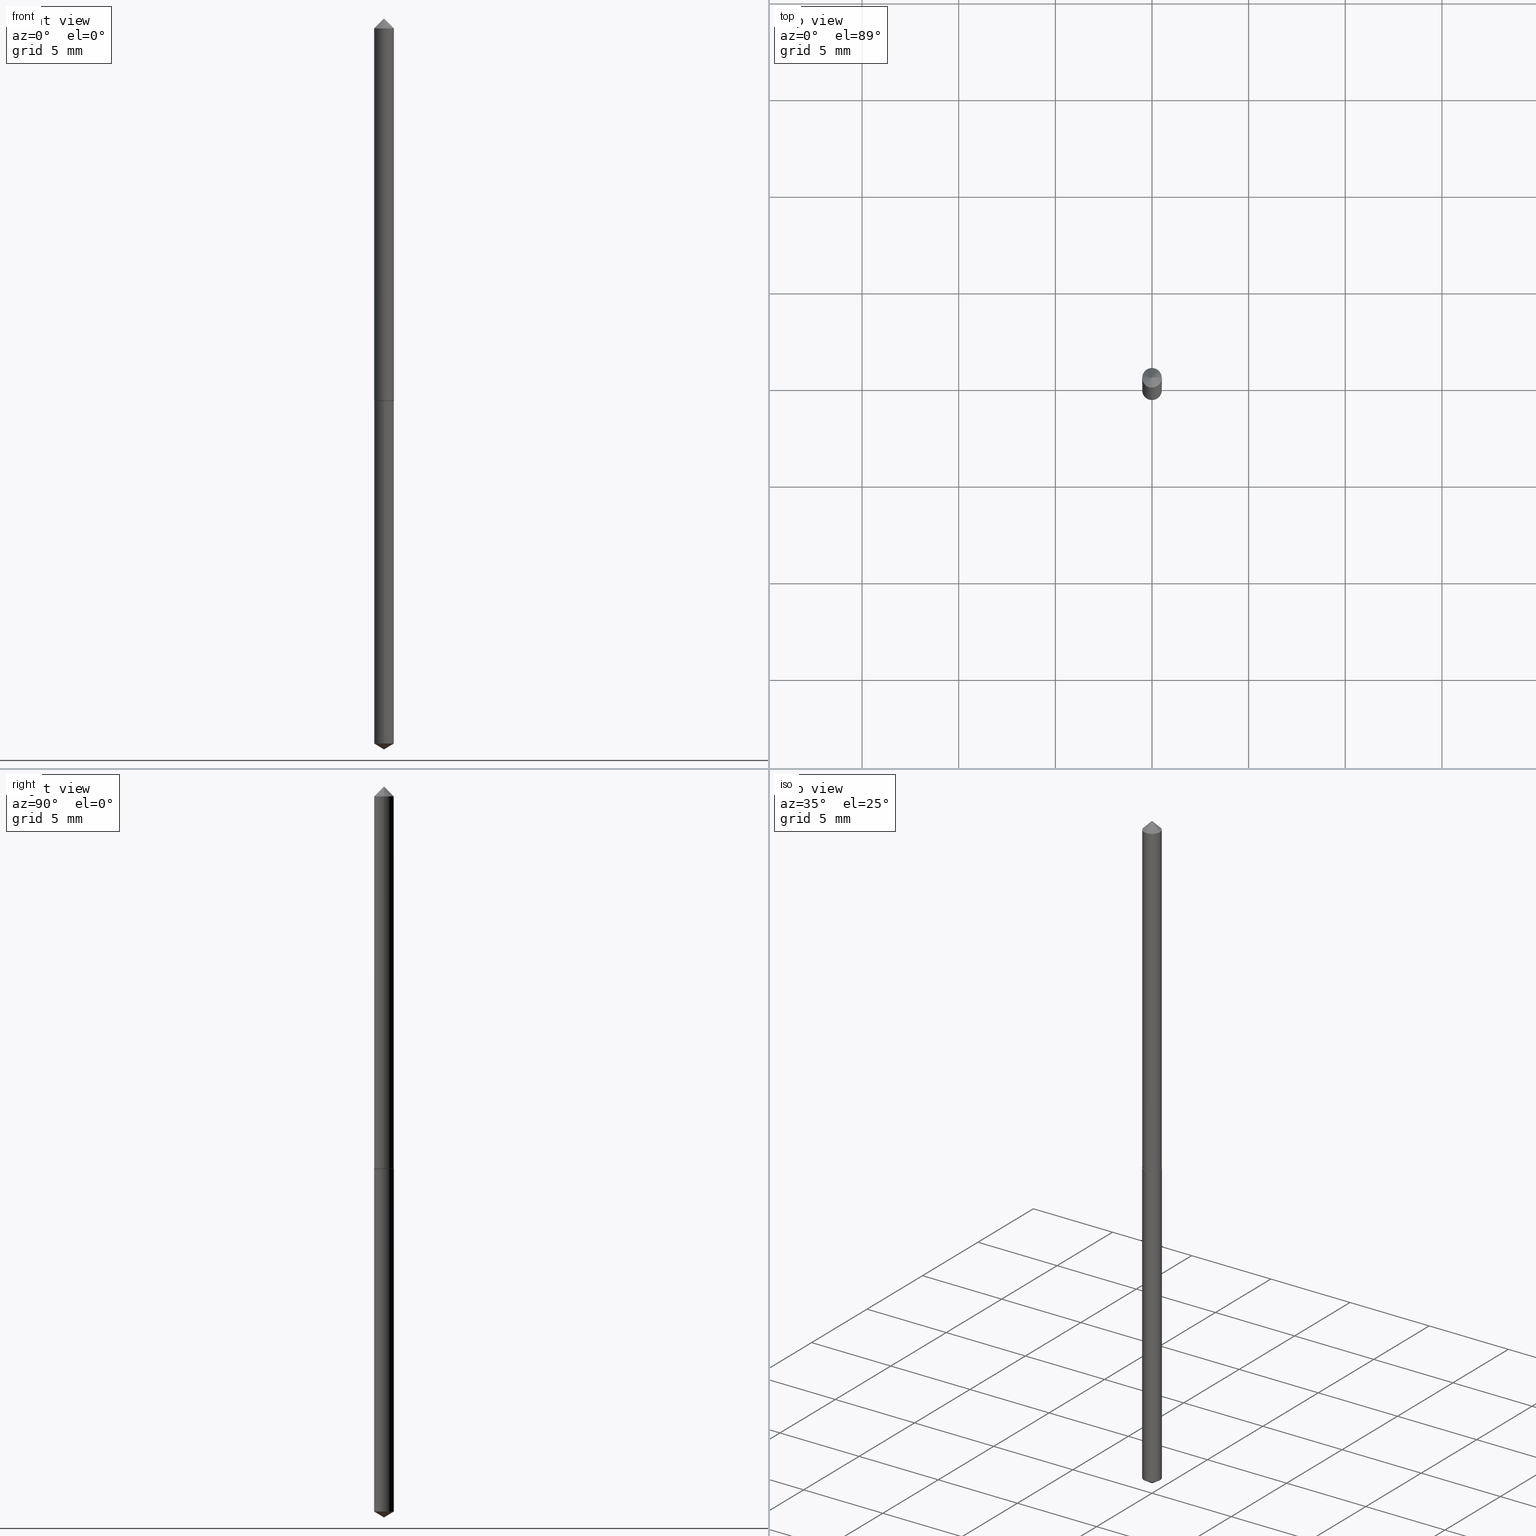
[diagram: canonical four-view strip — front | top / right | iso, engineering-drawing reading convention]
A machine part, canonical four-view strip (front | top / right | iso — engineering-drawing reading convention). The complete STEP part file that produces these views, byte-faithful:
ISO-10303-21;
HEADER;
FILE_DESCRIPTION (( 'STEP AP203' ),
    '1' );
FILE_NAME ('51060.STEP',
    '2024-04-22T18:21:04',
    ( '' ),
    ( '' ),
    'SwSTEP 2.0',
    'SolidWorks 2023',
    '' );
FILE_SCHEMA (( 'CONFIG_CONTROL_DESIGN' ));
ENDSEC;

DATA;
#1 = LINE ( 'NONE', #168, #60 ) ;
#2 = DIRECTION ( 'NONE',  ( 2.445468806185136597E-29, -3.491481338843145583E-15, -1.000000000000000000 ) ) ;
#3 = LOCAL_TIME ( 14, 21, 4.000000000000000000, #111 ) ;
#4 = APPROVAL ( #162, 'UNSPECIFIED' ) ;
#5 = AXIS2_PLACEMENT_3D ( 'NONE', #95, #192, #307 ) ;
#6 = CARTESIAN_POINT ( 'NONE',  ( 0.000000000000000000, 0.000000000000000000, 0.000000000000000000 ) ) ;
#7 = VERTEX_POINT ( 'NONE', #226 ) ;
#8 = ORIENTED_EDGE ( 'NONE', *, *, #183, .T. ) ;
#9 = ADVANCED_FACE ( 'NONE', ( #343 ), #140, .T. ) ;
#10 = VERTEX_POINT ( 'NONE', #193 ) ;
#11 = CONICAL_SURFACE ( 'NONE', #230, 0.02000000000000009409, 0.7853981633975507526 ) ;
#12 = DIRECTION ( 'NONE',  ( -1.000000000000000000, 6.982962677686266711E-15, 0.000000000000000000 ) ) ;
#13 = LINE ( 'NONE', #248, #329 ) ;
#14 = CYLINDRICAL_SURFACE ( 'NONE', #66, 0.02000000000000005246 ) ;
#15 = CARTESIAN_POINT ( 'NONE',  ( -1.396592535536889283E-16, -0.02000000000000519765, -1.487982787619448688 ) ) ;
#16 = APPROVAL_PERSON_ORGANIZATION ( #52, #360, #213 ) ;
#17 = CONICAL_SURFACE ( 'NONE', #223, 0.02000000000000000389, 0.7853981633974450594 ) ;
#18 = DIRECTION ( 'NONE',  ( -2.445468806185136597E-29, 3.491481338843145583E-15, 1.000000000000000000 ) ) ;
#19 = AXIS2_PLACEMENT_3D ( 'NONE', #245, #58, #282 ) ;
#20 = ADVANCED_FACE ( 'NONE', ( #283 ), #17, .T. ) ;
#21 = DIRECTION ( 'NONE',  ( -2.445556676142021675E-29, 3.491355504063638689E-15, 1.000000000000000000 ) ) ;
#22 = APPROVAL_STATUS ( 'not_yet_approved' ) ;
#23 = EDGE_CURVE ( 'NONE', #100, #287, #76, .T. ) ;
#24 = CARTESIAN_POINT ( 'NONE',  ( -0.02000000000000005246, 1.421085471520204099E-16, -9.837870180509835316E-31 ) ) ;
#25 = DATE_AND_TIME ( #326, #321 ) ;
#26 = MANIFOLD_SOLID_BREP ( 'Body-Move/Copy2[1]', #153 ) ;
#27 = SHAPE_DEFINITION_REPRESENTATION ( #217, #87 ) ;
#28 = CONICAL_SURFACE ( 'NONE', #163, 65.52281426576735157, 1.029744258676647206 ) ;
#29 =( NAMED_UNIT ( * ) PLANE_ANGLE_UNIT ( ) SI_UNIT ( $, .RADIAN. ) );
#30 = DIRECTION ( 'NONE',  ( -6.982962677686266711E-15, -1.000000000000000000, 3.468864327941651407E-15 ) ) ;
#31 = AXIS2_PLACEMENT_3D ( 'NONE', #347, #233, #350 ) ;
#32 = CARTESIAN_POINT ( 'NONE',  ( -0.01950000000000009365, -2.617065197038754036E-15, -0.7900000000000000355 ) ) ;
#33 = VERTEX_POINT ( 'NONE', #206 ) ;
#34 = VERTEX_POINT ( 'NONE', #176 ) ;
#35 = APPLICATION_CONTEXT ( 'configuration controlled 3d designs of mechanical parts and assemblies' ) ;
#36 = ORIENTED_EDGE ( 'NONE', *, *, #337, .T. ) ;
#37 = VECTOR ( 'NONE', #131, 39.37007874015748143 ) ;
#38 =( GEOMETRIC_REPRESENTATION_CONTEXT ( 3 ) GLOBAL_UNCERTAINTY_ASSIGNED_CONTEXT ( ( #264 ) ) GLOBAL_UNIT_ASSIGNED_CONTEXT ( ( #57, #29, #198 ) ) REPRESENTATION_CONTEXT ( 'NONE', 'WORKASPACE' ) );
#39 = VERTEX_POINT ( 'NONE', #316 ) ;
#40 = EDGE_LOOP ( 'NONE', ( #59, #86, #36 ) ) ;
#41 = FACE_OUTER_BOUND ( 'NONE', #199, .T. ) ;
#42 = DIRECTION ( 'NONE',  ( -6.982962677686265922E-15, -1.000000000000000000, 6.829619984160658243E-15 ) ) ;
#43 = FACE_OUTER_BOUND ( 'NONE', #345, .T. ) ;
#44 = CARTESIAN_POINT ( 'NONE',  ( 3.668196179681154223E-29, -5.237232075047078949E-15, -1.500000000000000222 ) ) ;
#45 = CARTESIAN_POINT ( 'NONE',  ( 1.931920356886258068E-29, -2.758270257686084896E-15, -0.7900000000000000355 ) ) ;
#46 = PERSON ( 'UNSPECIFIED', 'UNSPECIFIED', 'UNSPECIFIED', ('UNSPECIFIED'), ('UNSPECIFIED'), ('UNSPECIFIED') ) ;
#47 = DIRECTION ( 'NONE',  ( -2.445556676142021675E-29, 3.491355504063638295E-15, 1.000000000000000000 ) ) ;
#48 = DATE_TIME_ROLE ( 'creation_date' ) ;
#49 = APPROVAL_PERSON_ORGANIZATION ( #114, #196, #275 ) ;
#50 = EDGE_CURVE ( 'NONE', #33, #173, #293, .T. ) ;
#51 = DIRECTION ( 'NONE',  ( -2.445556676142021675E-29, 3.491355504063638689E-15, 1.000000000000000000 ) ) ;
#52 = PERSON_AND_ORGANIZATION ( #46, #202 ) ;
#53 = PERSON_AND_ORGANIZATION ( #46, #202 ) ;
#54 = DESIGN_CONTEXT ( 'detailed design', #55, 'design' ) ;
#55 = APPLICATION_CONTEXT ( 'configuration controlled 3d designs of mechanical parts and assemblies' ) ;
#56 = EDGE_CURVE ( 'NONE', #7, #10, #323, .T. ) ;
#57 =( CONVERSION_BASED_UNIT ( 'INCH', #301 ) LENGTH_UNIT ( ) NAMED_UNIT ( #107 ) );
#58 = DIRECTION ( 'NONE',  ( -2.445468806185136597E-29, 3.491481338843145583E-15, 1.000000000000000000 ) ) ;
#59 = ORIENTED_EDGE ( 'NONE', *, *, #232, .F. ) ;
#60 = VECTOR ( 'NONE', #170, 39.37007874015748143 ) ;
#61 = ORIENTED_EDGE ( 'NONE', *, *, #113, .F. ) ;
#62 = DIRECTION ( 'NONE',  ( 2.445556676142021675E-29, -3.491355504063638295E-15, -1.000000000000000000 ) ) ;
#63 = ORIENTED_EDGE ( 'NONE', *, *, #81, .F. ) ;
#64 = VERTEX_POINT ( 'NONE', #132 ) ;
#65 = PRODUCT_DEFINITION_FORMATION_WITH_SPECIFIED_SOURCE ( 'ANY', '', #276, .NOT_KNOWN. ) ;
#66 = AXIS2_PLACEMENT_3D ( 'NONE', #179, #105, #289 ) ;
#67 = ORIENTED_EDGE ( 'NONE', *, *, #232, .T. ) ;
#68 = DIRECTION ( 'NONE',  ( -0.7071067811865452413, 2.468850131082233000E-15, -0.7071067811865497932 ) ) ;
#69 = EDGE_CURVE ( 'NONE', #288, #39, #274, .T. ) ;
#70 = CARTESIAN_POINT ( 'NONE',  ( -1.396592535537060120E-16, -0.02000000000000275863, -0.7900000000000000355 ) ) ;
#71 = CC_DESIGN_APPROVAL ( #360, ( #65 ) ) ;
#72 = VECTOR ( 'NONE', #47, 39.37007874015748143 ) ;
#73 = CIRCLE ( 'NONE', #273, 0.02000000000000000389 ) ;
#74 = CC_DESIGN_PERSON_AND_ORGANIZATION_ASSIGNMENT ( #294, #239, ( #236 ) ) ;
#75 = AXIS2_PLACEMENT_3D ( 'NONE', #280, #363, #277 ) ;
#76 = LINE ( 'NONE', #70, #72 ) ;
#77 = DIRECTION ( 'NONE',  ( -2.445468806185136597E-29, 3.491481338843145583E-15, 1.000000000000000000 ) ) ;
#78 = PERSON_AND_ORGANIZATION_ROLE ( 'creator' ) ;
#79 = DIRECTION ( 'NONE',  ( 1.000000000000000000, -6.982962677686273810E-15, 0.000000000000000000 ) ) ;
#80 = DATE_AND_TIME ( #106, #3 ) ;
#81 = EDGE_CURVE ( 'NONE', #34, #100, #352, .T. ) ;
#82 = DIRECTION ( 'NONE',  ( -2.445468806185136877E-29, 3.491481338843145188E-15, 1.000000000000000000 ) ) ;
#83 = CALENDAR_DATE ( 2024, 22, 4 ) ;
#84 = APPROVAL_DATE_TIME ( #353, #360 ) ;
#85 = PERSON_AND_ORGANIZATION ( #46, #202 ) ;
#86 = ORIENTED_EDGE ( 'NONE', *, *, #56, .T. ) ;
#87 = ADVANCED_BREP_SHAPE_REPRESENTATION ( '51060', ( #26, #257, #313 ), #38 ) ;
#88 = DIRECTION ( 'NONE',  ( 0.7071067811865452413, -7.319954787623248157E-15, -0.7071067811865497932 ) ) ;
#89 = VECTOR ( 'NONE', #181, 39.37007874015748143 ) ;
#90 = DIRECTION ( 'NONE',  ( -2.445468806185136597E-29, 3.491481338843145583E-15, 1.000000000000000000 ) ) ;
#91 = EDGE_CURVE ( 'NONE', #173, #287, #286, .T. ) ;
#92 = DIRECTION ( 'NONE',  ( -2.445556676142021675E-29, 3.491355504063638689E-15, 1.000000000000000000 ) ) ;
#93 = ORIENTED_EDGE ( 'NONE', *, *, #220, .F. ) ;
#94 = ADVANCED_FACE ( 'NONE', ( #104 ), #265, .T. ) ;
#95 = CARTESIAN_POINT ( 'NONE',  ( 1.930697622483165547E-29, -2.756524517016664181E-15, -0.7895000000000000906 ) ) ;
#96 = DIRECTION ( 'NONE',  ( -1.000000000000000000, 6.982962677686266711E-15, 0.000000000000000000 ) ) ;
#97 = AXIS2_PLACEMENT_3D ( 'NONE', #133, #135, #234 ) ;
#98 = ORIENTED_EDGE ( 'NONE', *, *, #315, .T. ) ;
#99 = ORIENTED_EDGE ( 'NONE', *, *, #113, .T. ) ;
#100 = VERTEX_POINT ( 'NONE', #15 ) ;
#101 = AXIS2_PLACEMENT_3D ( 'NONE', #45, #77, #79 ) ;
#102 = VERTEX_POINT ( 'NONE', #263 ) ;
#103 = CARTESIAN_POINT ( 'NONE',  ( 3.668336231627996488E-29, -5.237033256095458034E-15, -1.500000000000000222 ) ) ;
#104 = FACE_OUTER_BOUND ( 'NONE', #247, .T. ) ;
#105 = DIRECTION ( 'NONE',  ( -2.445468806185136597E-29, 3.491481338843145583E-15, 1.000000000000000000 ) ) ;
#106 = CALENDAR_DATE ( 2024, 22, 4 ) ;
#107 = DIMENSIONAL_EXPONENTS ( 1.000000000000000000, 0.000000000000000000, 0.000000000000000000, 0.000000000000000000, 0.000000000000000000, 0.000000000000000000, 0.000000000000000000 ) ;
#108 = LINE ( 'NONE', #208, #355 ) ;
#109 = COORDINATED_UNIVERSAL_TIME_OFFSET ( 5, 0, .BEHIND. ) ;
#110 = CARTESIAN_POINT ( 'NONE',  ( 3.638876822981220103E-29, -5.195176304982929067E-15, -1.487982787619448688 ) ) ;
#111 = COORDINATED_UNIVERSAL_TIME_OFFSET ( 5, 0, .BEHIND. ) ;
#112 = CIRCLE ( 'NONE', #333, 0.02000000000000000042 ) ;
#113 = EDGE_CURVE ( 'NONE', #39, #288, #308, .T. ) ;
#114 = PERSON_AND_ORGANIZATION ( #46, #202 ) ;
#115 = CARTESIAN_POINT ( 'NONE',  ( 1.931920356886258349E-29, -2.758270257686085290E-15, -0.7900000000000001465 ) ) ;
#116 = DIRECTION ( 'NONE',  ( 0.7071067811866199593, -2.468850131083015945E-15, 0.7071067811864750752 ) ) ;
#117 = LOCAL_TIME ( 14, 21, 4.000000000000000000, #207 ) ;
#118 = CONICAL_SURFACE ( 'NONE', #339, 65.52281426576735157, 1.029744258676647206 ) ;
#119 = LINE ( 'NONE', #359, #361 ) ;
#120 = FACE_OUTER_BOUND ( 'NONE', #311, .T. ) ;
#121 = ORIENTED_EDGE ( 'NONE', *, *, #124, .T. ) ;
#122 = DIRECTION ( 'NONE',  ( -6.982962677686266711E-15, -1.000000000000000000, 3.468864327941651407E-15 ) ) ;
#123 = AXIS2_PLACEMENT_3D ( 'NONE', #115, #62, #244 ) ;
#124 = EDGE_CURVE ( 'NONE', #287, #173, #212, .T. ) ;
#125 = DIRECTION ( 'NONE',  ( 0.000000000000000000, 0.000000000000000000, 1.000000000000000000 ) ) ;
#126 = ORIENTED_EDGE ( 'NONE', *, *, #157, .T. ) ;
#127 = ORIENTED_EDGE ( 'NONE', *, *, #56, .F. ) ;
#128 = ADVANCED_FACE ( 'NONE', ( #262 ), #11, .T. ) ;
#129 = ORIENTED_EDGE ( 'NONE', *, *, #50, .F. ) ;
#130 = CC_DESIGN_PERSON_AND_ORGANIZATION_ASSIGNMENT ( #85, #330, ( #276 ) ) ;
#131 = DIRECTION ( 'NONE',  ( -2.445556676142021675E-29, 3.491355504063638295E-15, 1.000000000000000000 ) ) ;
#132 = CARTESIAN_POINT ( 'NONE',  ( -0.02000000000000009409, -2.614415969864643229E-15, -0.7895000000000000906 ) ) ;
#133 = CARTESIAN_POINT ( 'NONE',  ( 1.930697622483165547E-29, -2.756524517016664181E-15, -0.7895000000000000906 ) ) ;
#134 = AXIS2_PLACEMENT_3D ( 'NONE', #267, #21, #136 ) ;
#135 = DIRECTION ( 'NONE',  ( -2.445468806185136597E-29, 3.491481338843145583E-15, 1.000000000000000000 ) ) ;
#136 = DIRECTION ( 'NONE',  ( -6.982962677686265922E-15, -1.000000000000000000, 6.829619984160658243E-15 ) ) ;
#137 = APPROVAL_STATUS ( 'not_yet_approved' ) ;
#138 = DIRECTION ( 'NONE',  ( -2.445556676142021675E-29, 3.491355504063638689E-15, 1.000000000000000000 ) ) ;
#139 = PERSON_AND_ORGANIZATION_ROLE ( 'creator' ) ;
#140 = CONICAL_SURFACE ( 'NONE', #338, 0.02000000000000000389, 0.7853981633974450594 ) ;
#141 = ORIENTED_EDGE ( 'NONE', *, *, #23, .F. ) ;
#142 = ORIENTED_EDGE ( 'NONE', *, *, #299, .F. ) ;
#143 = AXIS2_PLACEMENT_3D ( 'NONE', #231, #204, #292 ) ;
#144 = CARTESIAN_POINT ( 'NONE',  ( 7.642090019328601786E-31, -1.091087918388490144E-16, -0.03125000000000020123 ) ) ;
#145 = ORIENTED_EDGE ( 'NONE', *, *, #220, .T. ) ;
#146 = EDGE_LOOP ( 'NONE', ( #63, #8, #362 ) ) ;
#147 = AXIS2_PLACEMENT_3D ( 'NONE', #110, #138, #327 ) ;
#148 = EDGE_LOOP ( 'NONE', ( #127, #67, #166 ) ) ;
#149 = VERTEX_POINT ( 'NONE', #156 ) ;
#150 = ADVANCED_FACE ( 'NONE', ( #43 ), #187, .T. ) ;
#151 = CC_DESIGN_PERSON_AND_ORGANIZATION_ASSIGNMENT ( #268, #139, ( #65 ) ) ;
#152 = CARTESIAN_POINT ( 'NONE',  ( -0.02000000000000000389, 3.055046171487634327E-17, -0.03125000000000020123 ) ) ;
#153 = CLOSED_SHELL ( 'NONE', ( #216, #278, #270, #167, #348 ) ) ;
#154 = AXIS2_PLACEMENT_3D ( 'NONE', #158, #325, #42 ) ;
#155 = DIRECTION ( 'NONE',  ( 1.000000000000000000, -6.982962677686273810E-15, 0.000000000000000000 ) ) ;
#156 = CARTESIAN_POINT ( 'NONE',  ( 0.02000000000000000389, -2.487680453925743658E-16, -0.03125000000000020123 ) ) ;
#157 = EDGE_CURVE ( 'NONE', #288, #64, #108, .T. ) ;
#158 = CARTESIAN_POINT ( 'NONE',  ( 1.931920356886258349E-29, -2.758270257686085290E-15, -0.7900000000000001465 ) ) ;
#159 = CARTESIAN_POINT ( 'NONE',  ( 1.421085471520393179E-16, 0.01999999999999724221, -0.7900000000000003686 ) ) ;
#160 = CALENDAR_DATE ( 2024, 22, 4 ) ;
#161 = CARTESIAN_POINT ( 'NONE',  ( 1.931920356886258349E-29, -2.758270257686085290E-15, -0.7900000000000001465 ) ) ;
#162 = APPROVAL_STATUS ( 'not_yet_approved' ) ;
#163 = AXIS2_PLACEMENT_3D ( 'NONE', #334, #335, #122 ) ;
#164 = ADVANCED_FACE ( 'NONE', ( #203 ), #14, .T. ) ;
#165 = FACE_OUTER_BOUND ( 'NONE', #344, .T. ) ;
#166 = ORIENTED_EDGE ( 'NONE', *, *, #299, .T. ) ;
#167 = ADVANCED_FACE ( 'NONE', ( #296 ), #259, .T. ) ;
#168 = CARTESIAN_POINT ( 'NONE',  ( 0.02000000000000005246, -1.396592535537256843E-16, 9.752353551591896459E-31 ) ) ;
#169 = EDGE_LOOP ( 'NONE', ( #93, #197, #201, #357 ) ) ;
#170 = DIRECTION ( 'NONE',  ( -2.445468806185136877E-29, 3.491481338843145188E-15, 1.000000000000000000 ) ) ;
#171 = EDGE_LOOP ( 'NONE', ( #129, #340, #258, #243 ) ) ;
#172 = ORIENTED_EDGE ( 'NONE', *, *, #318, .F. ) ;
#173 = VERTEX_POINT ( 'NONE', #238 ) ;
#174 = DIRECTION ( 'NONE',  ( 1.000000000000000000, -6.982962677686276177E-15, 0.000000000000000000 ) ) ;
#175 = DIRECTION ( 'NONE',  ( -2.445468806185136597E-29, 3.491481338843145583E-15, 1.000000000000000000 ) ) ;
#176 = CARTESIAN_POINT ( 'NONE',  ( 3.668335014213032512E-29, -5.237033256095458034E-15, -1.500000000000000222 ) ) ;
#177 = DIRECTION ( 'NONE',  ( -5.985567269335916825E-15, -0.8571673007021067825, 0.5150380749100633704 ) ) ;
#178 = SECURITY_CLASSIFICATION_LEVEL ( 'unclassified' ) ;
#179 = CARTESIAN_POINT ( 'NONE',  ( 0.000000000000000000, 0.000000000000000000, 0.000000000000000000 ) ) ;
#180 = AXIS2_PLACEMENT_3D ( 'NONE', #290, #175, #155 ) ;
#181 = DIRECTION ( 'NONE',  ( 6.090539988449753981E-15, 0.8571673007021103352, 0.5150380749100573752 ) ) ;
#182 = COORDINATED_UNIVERSAL_TIME_OFFSET ( 5, 0, .BEHIND. ) ;
#183 = EDGE_CURVE ( 'NONE', #34, #33, #346, .T. ) ;
#184 = DATE_TIME_ROLE ( 'classification_date' ) ;
#185 = DATE_AND_TIME ( #271, #279 ) ;
#186 = CC_DESIGN_SECURITY_CLASSIFICATION ( #236, ( #65 ) ) ;
#187 = CONICAL_SURFACE ( 'NONE', #97, 0.02000000000000009409, 0.7853981633975507526 ) ;
#188 = CC_DESIGN_DATE_AND_TIME_ASSIGNMENT ( #80, #48, ( #342 ) ) ;
#189 = CARTESIAN_POINT ( 'NONE',  ( -1.396592535537060120E-16, -0.02000000000000275863, -0.7900000000000000355 ) ) ;
#190 = FACE_OUTER_BOUND ( 'NONE', #146, .T. ) ;
#191 = EDGE_CURVE ( 'NONE', #33, #100, #300, .T. ) ;
#192 = DIRECTION ( 'NONE',  ( -2.445468806185136597E-29, 3.491481338843145583E-15, 1.000000000000000000 ) ) ;
#193 = CARTESIAN_POINT ( 'NONE',  ( -0.02000000000000000389, -1.290708107275735097E-15, -0.03125000000000020123 ) ) ;
#194 = AXIS2_PLACEMENT_3D ( 'NONE', #161, #51, #269 ) ;
#195 = DIRECTION ( 'NONE',  ( -6.982962677686265922E-15, -1.000000000000000000, 0.000000000000000000 ) ) ;
#196 = APPROVAL ( #137, 'UNSPECIFIED' ) ;
#197 = ORIENTED_EDGE ( 'NONE', *, *, #364, .T. ) ;
#198 =( NAMED_UNIT ( * ) SI_UNIT ( $, .STERADIAN. ) SOLID_ANGLE_UNIT ( ) );
#199 = EDGE_LOOP ( 'NONE', ( #61, #229 ) ) ;
#200 = CC_DESIGN_APPROVAL ( #196, ( #342 ) ) ;
#201 = ORIENTED_EDGE ( 'NONE', *, *, #237, .T. ) ;
#202 = ORGANIZATION ( 'UNSPECIFIED', 'UNSPECIFIED', '' ) ;
#203 = FACE_OUTER_BOUND ( 'NONE', #169, .T. ) ;
#204 = DIRECTION ( 'NONE',  ( -2.445468806185136597E-29, 3.491481338843145583E-15, 1.000000000000000000 ) ) ;
#205 = CARTESIAN_POINT ( 'NONE',  ( 1.930697622483165547E-29, -2.756524517016664181E-15, -0.7895000000000000906 ) ) ;
#206 = CARTESIAN_POINT ( 'NONE',  ( 1.421085471520564263E-16, 0.01999999999999480665, -1.487982787619448688 ) ) ;
#207 = COORDINATED_UNIVERSAL_TIME_OFFSET ( 5, 0, .BEHIND. ) ;
#208 = CARTESIAN_POINT ( 'NONE',  ( -0.02000000000000009409, -2.614415969864643229E-15, -0.7895000000000000906 ) ) ;
#209 = APPLICATION_PROTOCOL_DEFINITION ( 'international standard', 'config_control_design', 1994, #55 ) ;
#210 = LINE ( 'NONE', #24, #291 ) ;
#211 = PERSON_AND_ORGANIZATION_ROLE ( 'design_supplier' ) ;
#212 = CIRCLE ( 'NONE', #31, 0.02000000000000000042 ) ;
#213 = APPROVAL_ROLE ( '' ) ;
#214 = APPROVAL_DATE_TIME ( #25, #196 ) ;
#215 = ORIENTED_EDGE ( 'NONE', *, *, #315, .F. ) ;
#216 = ADVANCED_FACE ( 'NONE', ( #297 ), #240, .T. ) ;
#217 = PRODUCT_DEFINITION_SHAPE ( 'NONE', 'NONE',  #342 ) ;
#218 = CARTESIAN_POINT ( 'NONE',  ( 7.642090019328601786E-31, -1.091087918388490144E-16, -0.03125000000000020123 ) ) ;
#219 = DIRECTION ( 'NONE',  ( 1.000000000000000000, -6.982962677686266711E-15, 0.000000000000000000 ) ) ;
#220 = EDGE_CURVE ( 'NONE', #64, #10, #210, .T. ) ;
#221 = EDGE_LOOP ( 'NONE', ( #99, #126, #215, #172 ) ) ;
#222 = CARTESIAN_POINT ( 'NONE',  ( -9.261349330628211132E-28, 1.322178084392963997E-13, 37.87007874015748143 ) ) ;
#223 = AXIS2_PLACEMENT_3D ( 'NONE', #250, #2, #12 ) ;
#224 = ORIENTED_EDGE ( 'NONE', *, *, #237, .F. ) ;
#225 = CIRCLE ( 'NONE', #75, 0.02000000000000000389 ) ;
#226 = CARTESIAN_POINT ( 'NONE',  ( 2.751152406958296661E-31, -3.927916506198563605E-17, -0.01125000000000007244 ) ) ;
#227 = ADVANCED_FACE ( 'NONE', ( #41 ), #256, .F. ) ;
#228 = ORIENTED_EDGE ( 'NONE', *, *, #364, .F. ) ;
#229 = ORIENTED_EDGE ( 'NONE', *, *, #69, .F. ) ;
#230 = AXIS2_PLACEMENT_3D ( 'NONE', #205, #18, #174 ) ;
#231 = CARTESIAN_POINT ( 'NONE',  ( 0.000000000000000000, 0.000000000000000000, 0.000000000000000000 ) ) ;
#232 = EDGE_CURVE ( 'NONE', #7, #149, #13, .T. ) ;
#233 = DIRECTION ( 'NONE',  ( -2.445556676142021675E-29, 3.491355504063638689E-15, 1.000000000000000000 ) ) ;
#234 = DIRECTION ( 'NONE',  ( 1.000000000000000000, -6.982962677686276177E-15, 0.000000000000000000 ) ) ;
#235 = DIRECTION ( 'NONE',  ( -2.438088387897960049E-29, 3.491481338843145188E-15, 1.000000000000000000 ) ) ;
#236 = SECURITY_CLASSIFICATION ( '', '', #178 ) ;
#237 = EDGE_CURVE ( 'NONE', #102, #149, #1, .T. ) ;
#238 = CARTESIAN_POINT ( 'NONE',  ( 1.421085471520565496E-16, 0.01999999999999724221, -0.7900000000000003686 ) ) ;
#239 = PERSON_AND_ORGANIZATION_ROLE ( 'classification_officer' ) ;
#240 = CYLINDRICAL_SURFACE ( 'NONE', #194, 0.02000000000000000042 ) ;
#241 = PERSON_AND_ORGANIZATION ( #46, #202 ) ;
#242 = VECTOR ( 'NONE', #177, 39.37007874015748143 ) ;
#243 = ORIENTED_EDGE ( 'NONE', *, *, #91, .F. ) ;
#244 = DIRECTION ( 'NONE',  ( 6.982962677686265922E-15, 1.000000000000000000, -3.491355504063638295E-15 ) ) ;
#245 = CARTESIAN_POINT ( 'NONE',  ( 1.930697622483165547E-29, -2.756524517016664181E-15, -0.7895000000000000906 ) ) ;
#246 = CC_DESIGN_APPROVAL ( #4, ( #236 ) ) ;
#247 = EDGE_LOOP ( 'NONE', ( #98, #145, #142, #224 ) ) ;
#248 = CARTESIAN_POINT ( 'NONE',  ( 0.02000000000000000389, -2.463187517942796648E-16, -0.03125000000000020123 ) ) ;
#249 = ORIENTED_EDGE ( 'NONE', *, *, #183, .F. ) ;
#250 = CARTESIAN_POINT ( 'NONE',  ( 7.642090019328601786E-31, -1.091087918388490144E-16, -0.03125000000000020123 ) ) ;
#251 = APPROVAL_PERSON_ORGANIZATION ( #53, #4, #351 ) ;
#252 = CIRCLE ( 'NONE', #19, 0.02000000000000009409 ) ;
#253 = ORIENTED_EDGE ( 'NONE', *, *, #157, .F. ) ;
#254 = PRODUCT_RELATED_PRODUCT_CATEGORY ( 'detail', '', ( #276 ) ) ;
#255 = ORIENTED_EDGE ( 'NONE', *, *, #81, .T. ) ;
#256 = PLANE ( 'NONE',  #261 ) ;
#257 = MANIFOLD_SOLID_BREP ( 'Body-Move/Copy2[2]', #260 ) ;
#258 = ORIENTED_EDGE ( 'NONE', *, *, #23, .T. ) ;
#259 = CYLINDRICAL_SURFACE ( 'NONE', #134, 0.02000000000000000042 ) ;
#260 = CLOSED_SHELL ( 'NONE', ( #9, #94, #128, #227, #150, #164, #20 ) ) ;
#261 = AXIS2_PLACEMENT_3D ( 'NONE', #317, #235, #320 ) ;
#262 = FACE_OUTER_BOUND ( 'NONE', #221, .T. ) ;
#263 = CARTESIAN_POINT ( 'NONE',  ( 0.02000000000000009409, -2.896183770570390383E-15, -0.7895000000000000906 ) ) ;
#264 = UNCERTAINTY_MEASURE_WITH_UNIT (LENGTH_MEASURE( 1.000000000000000082E-05 ), #57, 'distance_accuracy_value', 'NONE');
#265 = CYLINDRICAL_SURFACE ( 'NONE', #143, 0.02000000000000005246 ) ;
#266 = EDGE_CURVE ( 'NONE', #100, #33, #112, .T. ) ;
#267 = CARTESIAN_POINT ( 'NONE',  ( 1.931920356886258349E-29, -2.758270257686085290E-15, -0.7900000000000001465 ) ) ;
#268 = PERSON_AND_ORGANIZATION ( #46, #202 ) ;
#269 = DIRECTION ( 'NONE',  ( -6.982962677686265922E-15, -1.000000000000000000, 6.829619984160658243E-15 ) ) ;
#270 = ADVANCED_FACE ( 'NONE', ( #165 ), #28, .T. ) ;
#271 = CALENDAR_DATE ( 2024, 22, 4 ) ;
#272 = LOCAL_TIME ( 14, 21, 4.000000000000000000, #109 ) ;
#273 = AXIS2_PLACEMENT_3D ( 'NONE', #218, #90, #219 ) ;
#274 = CIRCLE ( 'NONE', #101, 0.01950000000000009365 ) ;
#275 = APPROVAL_ROLE ( '' ) ;
#276 = PRODUCT ( '51060', '51060', '', ( #298 ) ) ;
#277 = DIRECTION ( 'NONE',  ( 1.000000000000000000, -6.982962677686266711E-15, 0.000000000000000000 ) ) ;
#278 = ADVANCED_FACE ( 'NONE', ( #190 ), #118, .T. ) ;
#279 = LOCAL_TIME ( 14, 21, 4.000000000000000000, #182 ) ;
#280 = CARTESIAN_POINT ( 'NONE',  ( 7.642090019328601786E-31, -1.091087918388490144E-16, -0.03125000000000020123 ) ) ;
#281 = ORIENTED_EDGE ( 'NONE', *, *, #191, .F. ) ;
#282 = DIRECTION ( 'NONE',  ( 1.000000000000000000, -6.982962677686276177E-15, 0.000000000000000000 ) ) ;
#283 = FACE_OUTER_BOUND ( 'NONE', #40, .T. ) ;
#284 = ORIENTED_EDGE ( 'NONE', *, *, #266, .T. ) ;
#285 = VECTOR ( 'NONE', #68, 39.37007874015748143 ) ;
#286 = CIRCLE ( 'NONE', #154, 0.02000000000000000042 ) ;
#287 = VERTEX_POINT ( 'NONE', #189 ) ;
#288 = VERTEX_POINT ( 'NONE', #32 ) ;
#289 = DIRECTION ( 'NONE',  ( 1.000000000000000000, -6.982962677686265922E-15, 4.876176775795935232E-29 ) ) ;
#290 = CARTESIAN_POINT ( 'NONE',  ( 1.931920356886258068E-29, -2.758270257686084896E-15, -0.7900000000000000355 ) ) ;
#291 = VECTOR ( 'NONE', #82, 39.37007874015748143 ) ;
#292 = DIRECTION ( 'NONE',  ( 1.000000000000000000, -6.982962677686265922E-15, 4.876176775795935232E-29 ) ) ;
#293 = LINE ( 'NONE', #159, #37 ) ;
#294 = PERSON_AND_ORGANIZATION ( #46, #202 ) ;
#295 = CC_DESIGN_PERSON_AND_ORGANIZATION_ASSIGNMENT ( #241, #78, ( #342 ) ) ;
#296 = FACE_OUTER_BOUND ( 'NONE', #171, .T. ) ;
#297 = FACE_OUTER_BOUND ( 'NONE', #306, .T. ) ;
#298 = MECHANICAL_CONTEXT ( 'NONE', #35, 'mechanical' ) ;
#299 = EDGE_CURVE ( 'NONE', #149, #10, #225, .T. ) ;
#300 = CIRCLE ( 'NONE', #147, 0.02000000000000000042 ) ;
#301 = LENGTH_MEASURE_WITH_UNIT ( LENGTH_MEASURE( 0.02539999999999999897 ), #358 );
#302 = CARTESIAN_POINT ( 'NONE',  ( 3.638876822981220103E-29, -5.195176304982929067E-15, -1.487982787619448688 ) ) ;
#303 = ORIENTED_EDGE ( 'NONE', *, *, #91, .T. ) ;
#304 = CC_DESIGN_PERSON_AND_ORGANIZATION_ASSIGNMENT ( #356, #211, ( #65 ) ) ;
#305 = DIRECTION ( 'NONE',  ( -2.445556676142021675E-29, 3.491355504063638689E-15, 1.000000000000000000 ) ) ;
#306 = EDGE_LOOP ( 'NONE', ( #284, #314, #312, #141 ) ) ;
#307 = DIRECTION ( 'NONE',  ( 1.000000000000000000, -6.982962677686276177E-15, 0.000000000000000000 ) ) ;
#308 = CIRCLE ( 'NONE', #180, 0.01950000000000009365 ) ;
#309 = ORIENTED_EDGE ( 'NONE', *, *, #318, .T. ) ;
#310 = PLANE ( 'NONE',  #123 ) ;
#311 = EDGE_LOOP ( 'NONE', ( #121, #303 ) ) ;
#312 = ORIENTED_EDGE ( 'NONE', *, *, #124, .F. ) ;
#313 = AXIS2_PLACEMENT_3D ( 'NONE', #6, #125, #324 ) ;
#314 = ORIENTED_EDGE ( 'NONE', *, *, #50, .T. ) ;
#315 = EDGE_CURVE ( 'NONE', #102, #64, #252, .T. ) ;
#316 = CARTESIAN_POINT ( 'NONE',  ( 0.01950000000000009365, -2.894438029900968091E-15, -0.7900000000000000355 ) ) ;
#317 = CARTESIAN_POINT ( 'NONE',  ( 5.796112700190605015E-29, 2.775473114095344910E-15, -0.7900000000000000355 ) ) ;
#318 = EDGE_CURVE ( 'NONE', #39, #102, #119, .T. ) ;
#319 = CIRCLE ( 'NONE', #5, 0.02000000000000009409 ) ;
#320 = DIRECTION ( 'NONE',  ( 1.000000000000000000, -6.982962677686265922E-15, 4.876176775795935793E-29 ) ) ;
#321 = LOCAL_TIME ( 14, 21, 4.000000000000000000, #354 ) ;
#322 = CC_DESIGN_DATE_AND_TIME_ASSIGNMENT ( #328, #184, ( #236 ) ) ;
#323 = LINE ( 'NONE', #152, #285 ) ;
#324 = DIRECTION ( 'NONE',  ( 1.000000000000000000, 0.000000000000000000, 0.000000000000000000 ) ) ;
#325 = DIRECTION ( 'NONE',  ( -2.445556676142021675E-29, 3.491355504063638689E-15, 1.000000000000000000 ) ) ;
#326 = CALENDAR_DATE ( 2024, 22, 4 ) ;
#327 = DIRECTION ( 'NONE',  ( -6.982962677686265922E-15, -1.000000000000000000, 0.000000000000000000 ) ) ;
#328 = DATE_AND_TIME ( #160, #272 ) ;
#329 = VECTOR ( 'NONE', #88, 39.37007874015748143 ) ;
#330 = PERSON_AND_ORGANIZATION_ROLE ( 'design_owner' ) ;
#331 = APPROVAL_DATE_TIME ( #185, #4 ) ;
#332 = ORIENTED_EDGE ( 'NONE', *, *, #69, .T. ) ;
#333 = AXIS2_PLACEMENT_3D ( 'NONE', #302, #305, #195 ) ;
#334 = CARTESIAN_POINT ( 'NONE',  ( -9.261349330628211132E-28, 1.322178084392963997E-13, 37.87007874015748143 ) ) ;
#335 = DIRECTION ( 'NONE',  ( -2.445556676142021675E-29, 3.491355504063638689E-15, 1.000000000000000000 ) ) ;
#336 = DIRECTION ( 'NONE',  ( 2.445468806185136597E-29, -3.491481338843145583E-15, -1.000000000000000000 ) ) ;
#337 = EDGE_CURVE ( 'NONE', #10, #149, #73, .T. ) ;
#338 = AXIS2_PLACEMENT_3D ( 'NONE', #144, #336, #96 ) ;
#339 = AXIS2_PLACEMENT_3D ( 'NONE', #222, #92, #30 ) ;
#340 = ORIENTED_EDGE ( 'NONE', *, *, #191, .T. ) ;
#341 = APPLICATION_PROTOCOL_DEFINITION ( 'international standard', 'config_control_design', 1994, #35 ) ;
#342 = PRODUCT_DEFINITION ( 'UNKNOWN', '', #65, #54 ) ;
#343 = FACE_OUTER_BOUND ( 'NONE', #148, .T. ) ;
#344 = EDGE_LOOP ( 'NONE', ( #249, #255, #281 ) ) ;
#345 = EDGE_LOOP ( 'NONE', ( #253, #332, #309, #228 ) ) ;
#346 = LINE ( 'NONE', #103, #89 ) ;
#347 = CARTESIAN_POINT ( 'NONE',  ( 1.931920356886258349E-29, -2.758270257686085290E-15, -0.7900000000000001465 ) ) ;
#348 = ADVANCED_FACE ( 'NONE', ( #120 ), #310, .F. ) ;
#349 = DIRECTION ( 'NONE',  ( -0.7071067811866199593, 7.493145998870616062E-15, 0.7071067811864750752 ) ) ;
#350 = DIRECTION ( 'NONE',  ( -6.982962677686265922E-15, -1.000000000000000000, 6.829619984160658243E-15 ) ) ;
#351 = APPROVAL_ROLE ( '' ) ;
#352 = LINE ( 'NONE', #44, #242 ) ;
#353 = DATE_AND_TIME ( #83, #117 ) ;
#354 = COORDINATED_UNIVERSAL_TIME_OFFSET ( 5, 0, .BEHIND. ) ;
#355 = VECTOR ( 'NONE', #349, 39.37007874015748143 ) ;
#356 = PERSON_AND_ORGANIZATION ( #46, #202 ) ;
#357 = ORIENTED_EDGE ( 'NONE', *, *, #337, .F. ) ;
#358 =( LENGTH_UNIT ( ) NAMED_UNIT ( * ) SI_UNIT ( $, .METRE. ) );
#359 = CARTESIAN_POINT ( 'NONE',  ( 0.02000000000000009409, -2.896183770570390383E-15, -0.7895000000000000906 ) ) ;
#360 = APPROVAL ( #22, 'UNSPECIFIED' ) ;
#361 = VECTOR ( 'NONE', #116, 39.37007874015748143 ) ;
#362 = ORIENTED_EDGE ( 'NONE', *, *, #266, .F. ) ;
#363 = DIRECTION ( 'NONE',  ( -2.445468806185136597E-29, 3.491481338843145583E-15, 1.000000000000000000 ) ) ;
#364 = EDGE_CURVE ( 'NONE', #64, #102, #319, .T. ) ;
ENDSEC;
END-ISO-10303-21;
